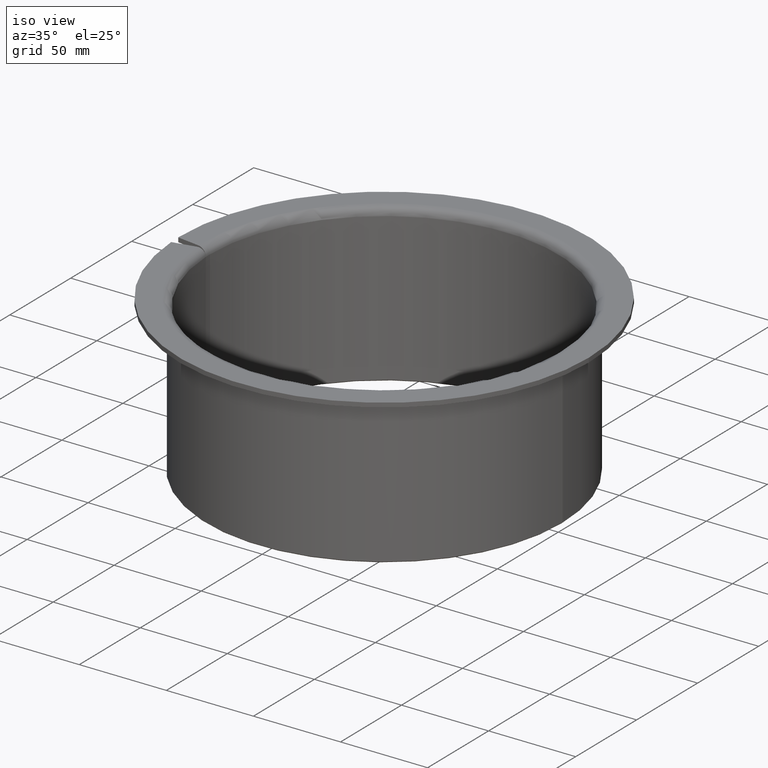
[diagram: clean part render]
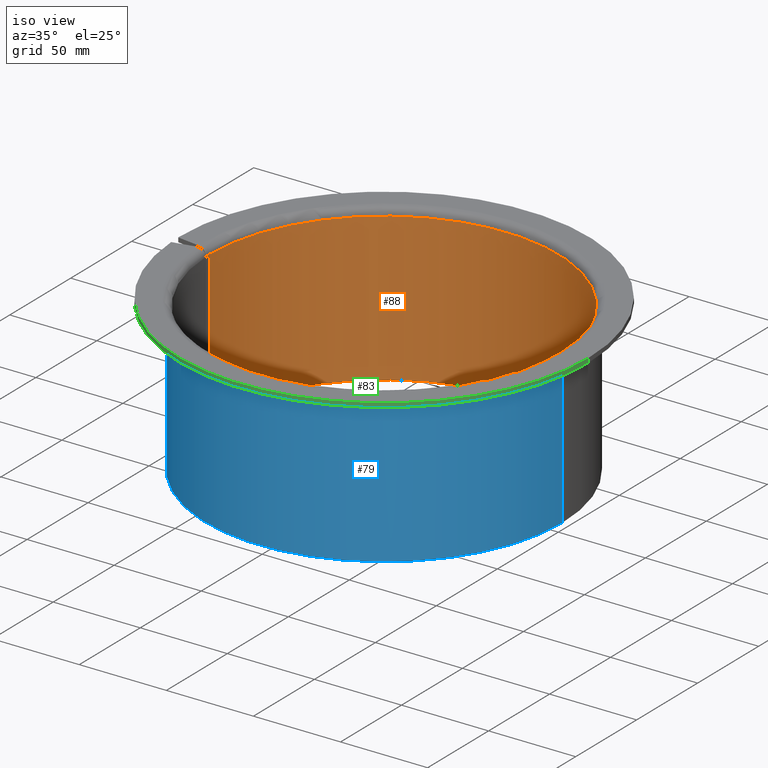
[diagram: same view with three faces highlighted in distinct colors, each labeled with its STEP entity id]
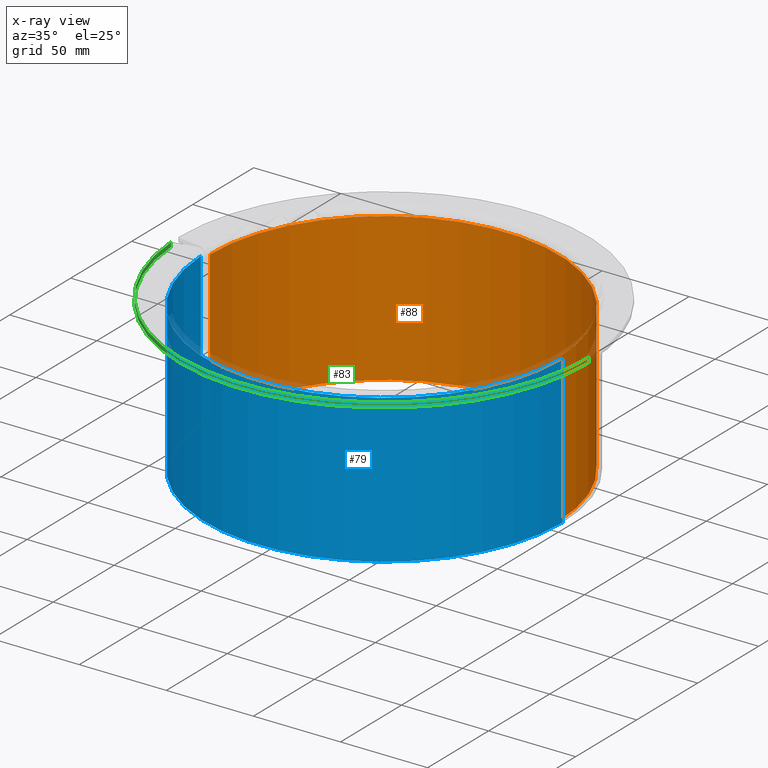
[diagram: x-ray of the same camera — body ghosted, the three highlighted faces saturated]
A machine part, iso view with three faces highlighted in distinct colors.
The next image is the same camera in x-ray (body ghosted, the three faces saturated) — at least one of them is partly hidden behind the body in this view.
Their STEP definitions:

[orange] entity #88 — the highlighted cylindrical surface (partial cylindrical patch) has radius 100 mm, axis along (-0, -0, 1).
#88=ADVANCED_FACE('',(#128),#129,.F.);
#128=FACE_OUTER_BOUND('',#180,.T.);
#129=CYLINDRICAL_SURFACE('',#181,100.0);
#180=EDGE_LOOP('',(#297,#298,#299,#300));
#181=AXIS2_PLACEMENT_3D('',#301,#302,#303);
#297=ORIENTED_EDGE('',*,*,#457,.F.);
#298=ORIENTED_EDGE('',*,*,#418,.F.);
#299=ORIENTED_EDGE('',*,*,#455,.F.);
#300=ORIENTED_EDGE('',*,*,#458,.T.);
#301=CARTESIAN_POINT('',(-2.8295281413662E-030,-1.49014960731379E-015,43.0));
#302=DIRECTION('',(-1.16269284789061E-031,-6.12323399573677E-017,1.0));
#303=DIRECTION('',(-1.0,1.87715863181855E-015,-1.32646929163972E-033));
#418=EDGE_CURVE('',#476,#485,#488,.T.);
#455=EDGE_CURVE('',#540,#476,#555,.T.);
#457=EDGE_CURVE('',#485,#549,#557,.T.);
#458=EDGE_CURVE('',#540,#549,#558,.T.);
#476=VERTEX_POINT('',#578);
#485=VERTEX_POINT('',#590);
#488=CIRCLE('',#594,100.0);
#540=VERTEX_POINT('',#673);
#549=VERTEX_POINT('',#703);
#555=LINE('',#730,#731);
#557=LINE('',#734,#735);
#558=CIRCLE('',#736,100.0);
#578=CARTESIAN_POINT('',(100.0,-1.98850106332455E-013,0.500000000000007));
#590=CARTESIAN_POINT('',(-100.0,2.01074556014203E-013,0.500000000000007));
#594=AXIS2_PLACEMENT_3D('',#789,#790,#791);
#673=CARTESIAN_POINT('',(100.0,-2.04054855228831E-013,85.5));
#703=CARTESIAN_POINT('',(-100.0,1.95869807117827E-013,85.5));
#730=CARTESIAN_POINT('',(100.0,-2.01452480780643E-013,43.0));
#731=VECTOR('',#865,1.0);
#734=CARTESIAN_POINT('',(-100.0,1.98472181566015E-013,43.0));
#735=VECTOR('',#867,1.0);
#736=AXIS2_PLACEMENT_3D('',#868,#869,#870);
#789=CARTESIAN_POINT('',(1.38670259942823E-030,7.30296441936522E-016,0.500000000000006));
#790=DIRECTION('',(-1.16269284789061E-031,-6.12323399573677E-017,1.0));
#791=DIRECTION('',(-1.0,1.87715863181855E-015,-1.32646929163972E-033));
#865=DIRECTION('',(1.16269284789061E-031,6.12323399573677E-017,-1.0));
#867=DIRECTION('',(-1.16269284789061E-031,-6.12323399573677E-017,1.0));
#868=CARTESIAN_POINT('',(-7.04575888216064E-030,-3.7105956565641E-015,85.5));
#869=DIRECTION('',(-1.16269284789061E-031,-6.12323399573677E-017,1.0));
#870=DIRECTION('',(-1.0,1.87715863181855E-015,-1.32646929163972E-033));

[blue] entity #79 — the highlighted cylindrical surface (partial cylindrical patch) has radius 102.5 mm, axis along (-0, -0, 1).
#79=ADVANCED_FACE('',(#110),#111,.T.);
#110=FACE_OUTER_BOUND('',#162,.T.);
#111=CYLINDRICAL_SURFACE('',#163,102.5);
#162=EDGE_LOOP('',(#234,#235,#236,#237));
#163=AXIS2_PLACEMENT_3D('',#238,#239,#240);
#234=ORIENTED_EDGE('',*,*,#427,.F.);
#235=ORIENTED_EDGE('',*,*,#428,.F.);
#236=ORIENTED_EDGE('',*,*,#429,.T.);
#237=ORIENTED_EDGE('',*,*,#420,.T.);
#238=CARTESIAN_POINT('',(-2.8295281413662E-030,-1.49014960731379E-015,43.0));
#239=DIRECTION('',(-1.16269284789061E-031,-6.12323399573677E-017,1.0));
#240=DIRECTION('',(-1.0,1.87715863181855E-015,-1.32646929163974E-033));
#420=EDGE_CURVE('',#492,#489,#493,.T.);
#427=EDGE_CURVE('',#505,#489,#506,.T.);
#428=EDGE_CURVE('',#507,#505,#508,.T.);
#429=EDGE_CURVE('',#507,#492,#509,.T.);
#489=VERTEX_POINT('',#595);
#492=VERTEX_POINT('',#599);
#493=CIRCLE('',#600,102.5);
#505=VERTEX_POINT('',#617);
#506=LINE('',#618,#619);
#507=VERTEX_POINT('',#620);
#508=CIRCLE('',#621,102.5);
#509=LINE('',#622,#623);
#595=CARTESIAN_POINT('',(102.5,-2.03849164611788E-013,0.500000000000007));
#599=CARTESIAN_POINT('',(-102.421234679189,-4.01754736008213,0.500000000000006));
#600=AXIS2_PLACEMENT_3D('',#793,#794,#795);
#617=CARTESIAN_POINT('',(102.5,-2.1089243107761E-013,85.5));
#618=CARTESIAN_POINT('',(102.5,-2.06451539059976E-013,43.0));
#619=VECTOR('',#806,1.0);
#620=CARTESIAN_POINT('',(-102.421234679189,-4.0175473600821,85.5));
#621=AXIS2_PLACEMENT_3D('',#807,#808,#809);
#622=CARTESIAN_POINT('',(-102.421234679189,-4.01754736008212,43.0));
#623=VECTOR('',#810,10.0);
#793=CARTESIAN_POINT('',(1.38670259942823E-030,7.30296441936522E-016,0.500000000000006));
#794=DIRECTION('',(-1.16269284789061E-031,-6.12323399573677E-017,1.0));
#795=DIRECTION('',(-1.0,1.87715863181855E-015,-1.32646929163974E-033));
#806=DIRECTION('',(1.16269284789061E-031,6.12323399573677E-017,-1.0));
#807=CARTESIAN_POINT('',(-7.04575888216064E-030,-3.7105956565641E-015,85.5));
#808=DIRECTION('',(-1.16269284789061E-031,-6.12323399573677E-017,1.0));
#809=DIRECTION('',(-1.0,1.87715863181855E-015,-1.32646929163974E-033));
#810=DIRECTION('',(1.16269284789061E-031,6.12323399573677E-017,-1.0));

[green] entity #83 — the highlighted cylindrical surface (partial cylindrical patch) has radius 117.5 mm, axis along (-0, -0, 1).
#83=ADVANCED_FACE('',(#118),#119,.T.);
#118=FACE_OUTER_BOUND('',#170,.T.);
#119=CYLINDRICAL_SURFACE('',#171,117.5);
#170=EDGE_LOOP('',(#262,#263,#264,#265));
#171=AXIS2_PLACEMENT_3D('',#266,#267,#268);
#262=ORIENTED_EDGE('',*,*,#439,.F.);
#263=ORIENTED_EDGE('',*,*,#440,.F.);
#264=ORIENTED_EDGE('',*,*,#441,.T.);
#265=ORIENTED_EDGE('',*,*,#442,.T.);
#266=CARTESIAN_POINT('',(-7.04575888216064E-030,-3.7105956565641E-015,88.75));
#267=DIRECTION('',(-1.16269284789061E-031,-6.12323399573677E-017,1.0));
#268=DIRECTION('',(-1.0,1.87715863181855E-015,-1.32646929163973E-033));
#439=EDGE_CURVE('',#524,#525,#526,.T.);
#440=EDGE_CURVE('',#527,#524,#528,.T.);
#441=EDGE_CURVE('',#527,#529,#530,.T.);
#442=EDGE_CURVE('',#529,#525,#531,.T.);
#524=VERTEX_POINT('',#653);
#525=VERTEX_POINT('',#654);
#526=LINE('',#655,#656);
#527=VERTEX_POINT('',#657);
#528=CIRCLE('',#658,117.5);
#529=VERTEX_POINT('',#659);
#530=LINE('',#660,#661);
#531=CIRCLE('',#662,117.5);
#653=CARTESIAN_POINT('',(117.5,-2.38742875210172E-013,90.0));
#654=CARTESIAN_POINT('',(117.5,-2.38589794360279E-013,87.5));
#655=CARTESIAN_POINT('',(117.5,-2.38666334785226E-013,88.75));
#656=VECTOR('',#831,1.0);
#657=CARTESIAN_POINT('',(-117.280666684964,-7.17601713559655,90.0));
#658=AXIS2_PLACEMENT_3D('',#832,#833,#834);
#659=CARTESIAN_POINT('',(-117.280666684964,-7.17601713559655,87.5));
#660=CARTESIAN_POINT('',(-117.280666684964,-7.17601713559655,88.75));
#661=VECTOR('',#835,10.0);
#662=AXIS2_PLACEMENT_3D('',#836,#837,#838);
#831=DIRECTION('',(1.16269284789061E-031,6.12323399573677E-017,-1.0));
#832=CARTESIAN_POINT('',(-7.04575888216064E-030,-3.7105956565641E-015,90.0));
#833=DIRECTION('',(-1.16269284789061E-031,-6.12323399573677E-017,1.0));
#834=DIRECTION('',(-1.0,1.87715863181855E-015,-1.32646929163973E-033));
#835=DIRECTION('',(1.16269284789061E-031,6.12323399573677E-017,-1.0));
#836=CARTESIAN_POINT('',(-7.04575888216064E-030,-3.7105956565641E-015,87.5));
#837=DIRECTION('',(-1.16269284789061E-031,-6.12323399573677E-017,1.0));
#838=DIRECTION('',(-1.0,1.87715863181855E-015,-1.32646929163973E-033));